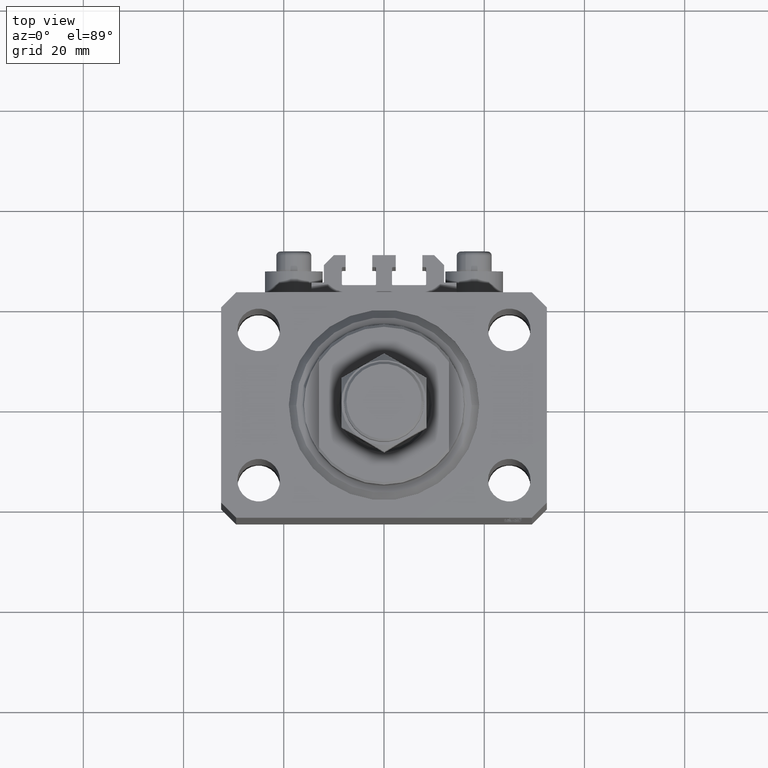
[diagram: clean part render]
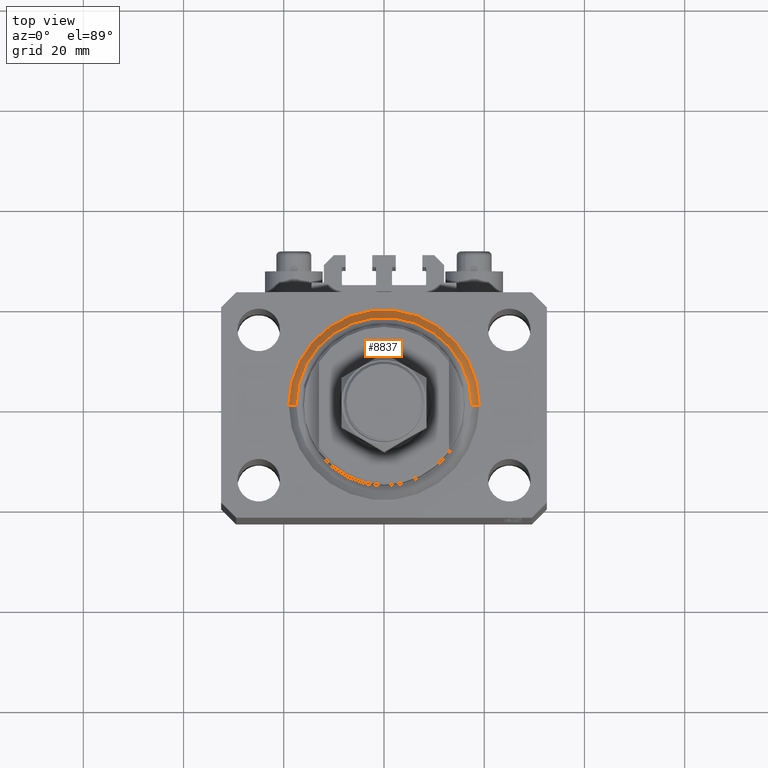
[diagram: same view with one face highlighted and labeled with its STEP entity id]
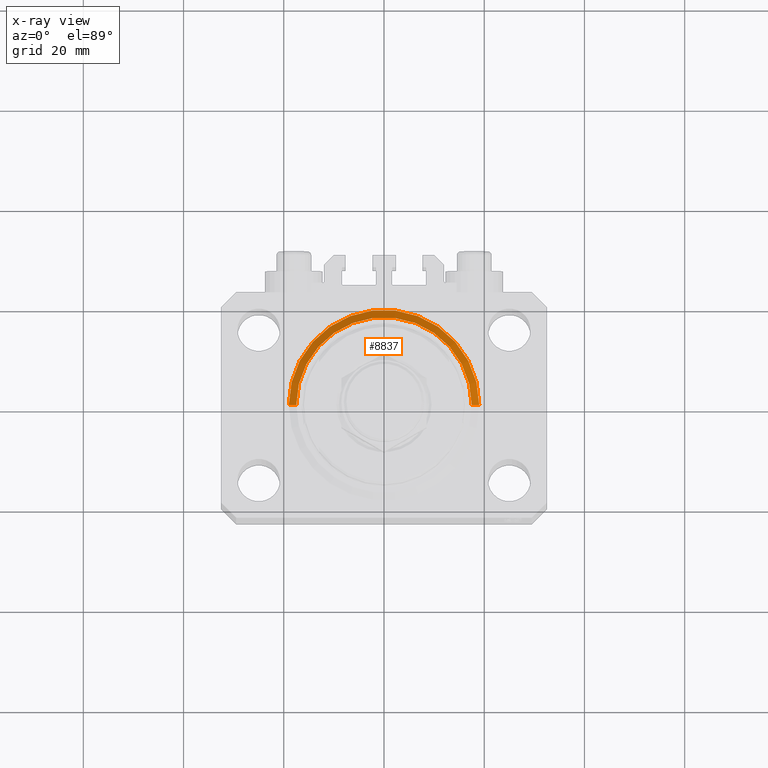
[diagram: x-ray of the same camera — body ghosted, the highlighted face saturated]
A machine part, top view. The second image highlights one B-rep face of the part: STEP entity #8837.
The next image is the same camera in x-ray: the body ghosted, the highlighted face saturated — about 0% of this face is hidden behind the body in this view.
In plain terms, the highlighted conical surface has half-angle 45 deg.
Its self-contained STEP definition (entity closure, byte-faithful):
#1368 = DIRECTION ( 'NONE',  ( -0.000000000000000000, -0.000000000000000000, 1.000000000000000000 ) ) ;
#2783 = EDGE_CURVE ( 'NONE', #46024, #34074, #15477, .T. ) ;
#3633 = AXIS2_PLACEMENT_3D ( 'NONE', #12813, #42390, #8353 ) ;
#5063 = ORIENTED_EDGE ( 'NONE', *, *, #16181, .T. ) ;
#5728 = CARTESIAN_POINT ( 'NONE',  ( 0.000000000000000000, 0.000000000000000000, 0.000000000000000000 ) ) ;
#6364 = DIRECTION ( 'NONE',  ( -0.7071067811865483499, 8.659560562354943952E-17, 0.7071067811865467956 ) ) ;
#8056 = AXIS2_PLACEMENT_3D ( 'NONE', #5728, #47453, #47927 ) ;
#8353 = DIRECTION ( 'NONE',  ( 1.000000000000000000, 0.000000000000000000, 0.000000000000000000 ) ) ;
#8837 = ADVANCED_FACE ( 'NONE', ( #42356 ), #14859, .T. ) ;
#9609 = LINE ( 'NONE', #40398, #12632 ) ;
#10258 = ORIENTED_EDGE ( 'NONE', *, *, #40262, .F. ) ;
#10564 = VECTOR ( 'NONE', #34607, 1000.000000000000000 ) ;
#12632 = VECTOR ( 'NONE', #6364, 1000.000000000000000 ) ;
#12813 = CARTESIAN_POINT ( 'NONE',  ( 0.000000000000000000, 0.000000000000000000, 1.500000000000004885 ) ) ;
#13264 = VERTEX_POINT ( 'NONE', #16404 ) ;
#14859 = CONICAL_SURFACE ( 'NONE', #30761, 19.00000000000000000, 0.7853981633974492782 ) ;
#15103 = CARTESIAN_POINT ( 'NONE',  ( 17.49999999999999289, 0.000000000000000000, 0.000000000000000000 ) ) ;
#15477 = LINE ( 'NONE', #26666, #10564 ) ;
#16181 = EDGE_CURVE ( 'NONE', #13264, #25779, #9609, .T. ) ;
#16404 = CARTESIAN_POINT ( 'NONE',  ( -17.49999999999999289, 2.234980408443919215E-15, 0.000000000000000000 ) ) ;
#16497 = DIRECTION ( 'NONE',  ( 1.000000000000000000, 0.000000000000000000, 0.000000000000000000 ) ) ;
#17524 = CIRCLE ( 'NONE', #8056, 17.49999999999999289 ) ;
#21180 = EDGE_CURVE ( 'NONE', #13264, #46024, #17524, .T. ) ;
#21338 = ORIENTED_EDGE ( 'NONE', *, *, #2783, .F. ) ;
#23223 = EDGE_LOOP ( 'NONE', ( #32855, #5063, #10258, #21338 ) ) ;
#25779 = VERTEX_POINT ( 'NONE', #46120 ) ;
#26666 = CARTESIAN_POINT ( 'NONE',  ( 19.00000000000000000, 0.000000000000000000, 1.500000000000004885 ) ) ;
#30761 = AXIS2_PLACEMENT_3D ( 'NONE', #35375, #1368, #16497 ) ;
#32855 = ORIENTED_EDGE ( 'NONE', *, *, #21180, .F. ) ;
#34074 = VERTEX_POINT ( 'NONE', #38452 ) ;
#34607 = DIRECTION ( 'NONE',  ( 0.7071067811865483499, 0.000000000000000000, 0.7071067811865467956 ) ) ;
#35375 = CARTESIAN_POINT ( 'NONE',  ( 0.000000000000000000, 0.000000000000000000, 1.500000000000004885 ) ) ;
#38452 = CARTESIAN_POINT ( 'NONE',  ( 19.00000000000000000, 2.326828918379970970E-15, 1.500000000000004885 ) ) ;
#40262 = EDGE_CURVE ( 'NONE', #34074, #25779, #44897, .T. ) ;
#40398 = CARTESIAN_POINT ( 'NONE',  ( -19.00000000000000000, 2.326828918379970970E-15, 1.500000000000004885 ) ) ;
#42356 = FACE_OUTER_BOUND ( 'NONE', #23223, .T. ) ;
#42390 = DIRECTION ( 'NONE',  ( -0.000000000000000000, -0.000000000000000000, 1.000000000000000000 ) ) ;
#44897 = CIRCLE ( 'NONE', #3633, 19.00000000000000000 ) ;
#46024 = VERTEX_POINT ( 'NONE', #15103 ) ;
#46120 = CARTESIAN_POINT ( 'NONE',  ( -19.00000000000000000, 0.000000000000000000, 1.500000000000004885 ) ) ;
#47453 = DIRECTION ( 'NONE',  ( -0.000000000000000000, -0.000000000000000000, -1.000000000000000000 ) ) ;
#47927 = DIRECTION ( 'NONE',  ( 1.000000000000000000, 0.000000000000000000, 0.000000000000000000 ) ) ;